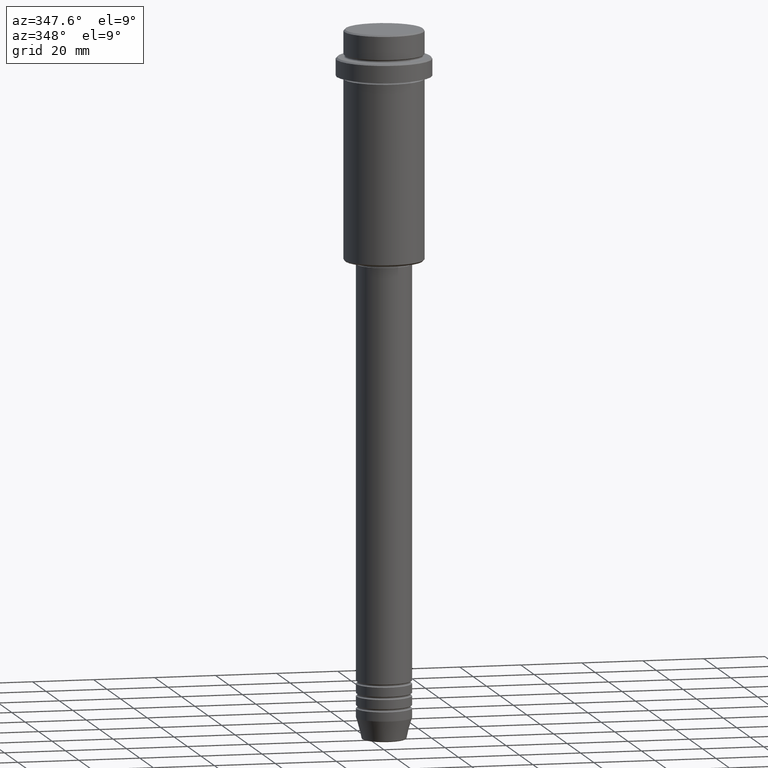
[diagram: clean part render]
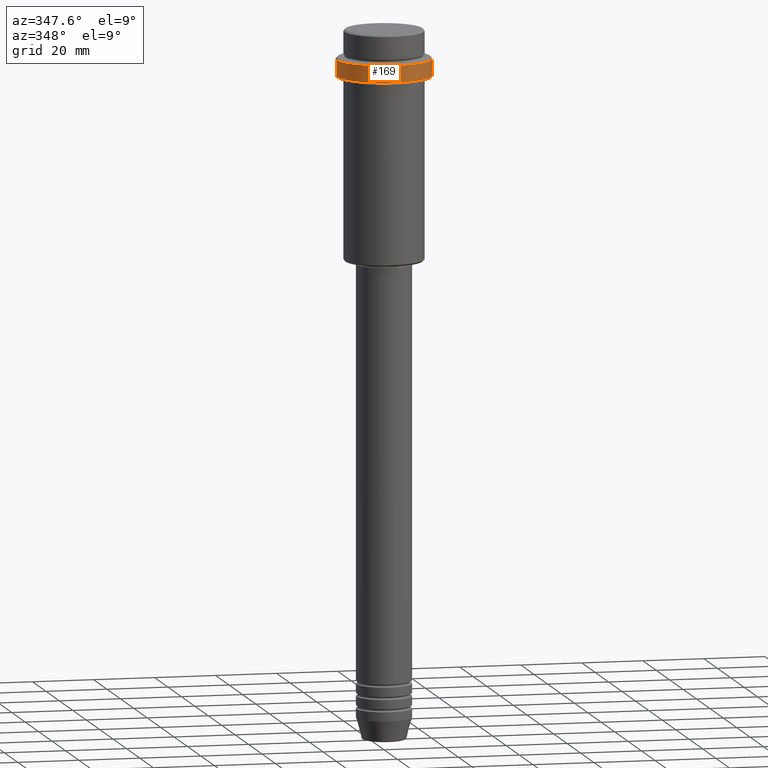
[diagram: same view with one face highlighted and labeled with its STEP entity id]
A machine part, auxiliary view. The second image highlights one B-rep face of the part: STEP entity #169.
In plain terms, the highlighted cylindrical surface (partial cylindrical patch) has radius 15.5 mm, axis along (-0, -0, 1).
Its self-contained STEP definition (entity closure, byte-faithful):
#49 = CARTESIAN_POINT ( 'NONE',  ( 15.50000000000000000, 0.000000000000000000, 0.000000000000000000 ) ) ;
#105 = AXIS2_PLACEMENT_3D ( 'NONE', #713, #591, #817 ) ;
#124 = CARTESIAN_POINT ( 'NONE',  ( -15.50000000000000000, 1.898202538678397557E-15, 0.000000000000000000 ) ) ;
#134 = DIRECTION ( 'NONE',  ( -0.000000000000000000, -0.000000000000000000, 1.000000000000000000 ) ) ;
#138 = DIRECTION ( 'NONE',  ( -0.000000000000000000, -0.000000000000000000, 1.000000000000000000 ) ) ;
#169 = ADVANCED_FACE ( 'NONE', ( #264 ), #1147, .T. ) ;
#170 = CARTESIAN_POINT ( 'NONE',  ( -15.50000000000000000, 1.898202538678397557E-15, -9.499999999999957367 ) ) ;
#185 = DIRECTION ( 'NONE',  ( 1.000000000000000000, 0.000000000000000000, 0.000000000000000000 ) ) ;
#187 = VERTEX_POINT ( 'NONE', #170 ) ;
#264 = FACE_OUTER_BOUND ( 'NONE', #286, .T. ) ;
#270 = CARTESIAN_POINT ( 'NONE',  ( 0.000000000000000000, 0.000000000000000000, -9.499999999999957367 ) ) ;
#286 = EDGE_LOOP ( 'NONE', ( #1061, #1394, #969, #1075 ) ) ;
#321 = AXIS2_PLACEMENT_3D ( 'NONE', #270, #1008, #893 ) ;
#474 = VECTOR ( 'NONE', #138, 1000.000000000000000 ) ;
#500 = CARTESIAN_POINT ( 'NONE',  ( 15.50000000000000000, 0.000000000000000000, -9.499999999999957367 ) ) ;
#560 = EDGE_CURVE ( 'NONE', #1170, #1378, #856, .T. ) ;
#591 = DIRECTION ( 'NONE',  ( -0.000000000000000000, -0.000000000000000000, 1.000000000000000000 ) ) ;
#597 = VERTEX_POINT ( 'NONE', #500 ) ;
#642 = CARTESIAN_POINT ( 'NONE',  ( -15.50000000000000000, 1.898202538678397557E-15, -15.00000000000000178 ) ) ;
#663 = CARTESIAN_POINT ( 'NONE',  ( 15.50000000000000000, 0.000000000000000000, -15.00000000000000178 ) ) ;
#713 = CARTESIAN_POINT ( 'NONE',  ( 0.000000000000000000, 0.000000000000000000, -15.00000000000000178 ) ) ;
#736 = AXIS2_PLACEMENT_3D ( 'NONE', #1025, #1267, #185 ) ;
#743 = VECTOR ( 'NONE', #134, 1000.000000000000000 ) ;
#777 = LINE ( 'NONE', #124, #474 ) ;
#791 = EDGE_CURVE ( 'NONE', #597, #187, #1155, .T. ) ;
#817 = DIRECTION ( 'NONE',  ( 1.000000000000000000, 0.000000000000000000, 0.000000000000000000 ) ) ;
#856 = CIRCLE ( 'NONE', #105, 15.50000000000000000 ) ;
#863 = EDGE_CURVE ( 'NONE', #1378, #597, #1229, .T. ) ;
#893 = DIRECTION ( 'NONE',  ( 1.000000000000000000, 0.000000000000000000, 0.000000000000000000 ) ) ;
#969 = ORIENTED_EDGE ( 'NONE', *, *, #863, .T. ) ;
#1008 = DIRECTION ( 'NONE',  ( 0.000000000000000000, 0.000000000000000000, -1.000000000000000000 ) ) ;
#1025 = CARTESIAN_POINT ( 'NONE',  ( 0.000000000000000000, 0.000000000000000000, 0.000000000000000000 ) ) ;
#1061 = ORIENTED_EDGE ( 'NONE', *, *, #1323, .F. ) ;
#1075 = ORIENTED_EDGE ( 'NONE', *, *, #791, .T. ) ;
#1147 = CYLINDRICAL_SURFACE ( 'NONE', #736, 15.50000000000000000 ) ;
#1155 = CIRCLE ( 'NONE', #321, 15.50000000000000000 ) ;
#1170 = VERTEX_POINT ( 'NONE', #642 ) ;
#1229 = LINE ( 'NONE', #49, #743 ) ;
#1267 = DIRECTION ( 'NONE',  ( -0.000000000000000000, -0.000000000000000000, 1.000000000000000000 ) ) ;
#1323 = EDGE_CURVE ( 'NONE', #1170, #187, #777, .T. ) ;
#1378 = VERTEX_POINT ( 'NONE', #663 ) ;
#1394 = ORIENTED_EDGE ( 'NONE', *, *, #560, .T. ) ;